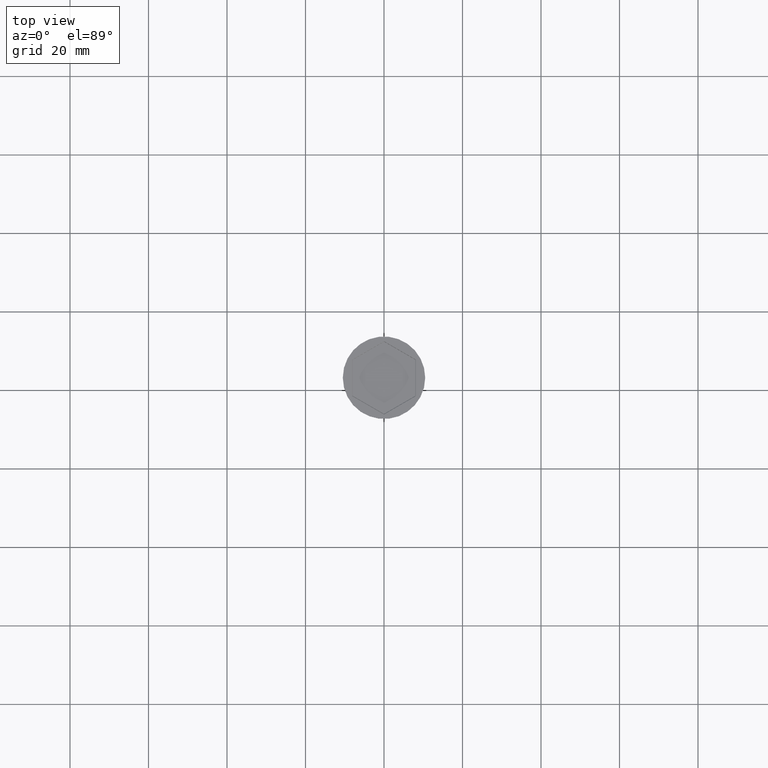
[diagram: clean part render]
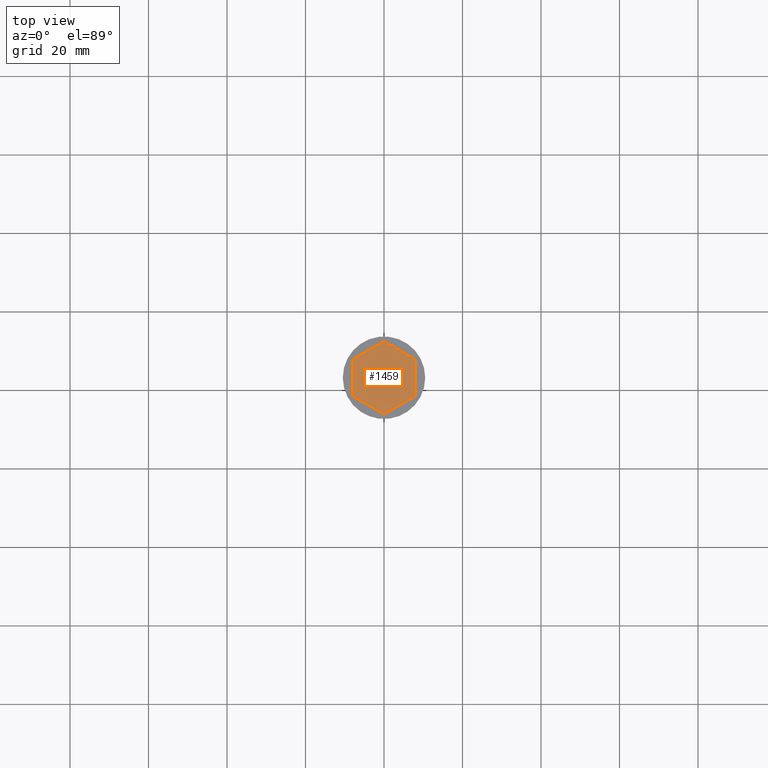
[diagram: same view with one face highlighted and labeled with its STEP entity id]
A machine part, top view. The second image highlights one B-rep face of the part: STEP entity #1459.
In plain terms, the highlighted planar face has unit normal (-0, 0, 1).
Its self-contained STEP definition (entity closure, byte-faithful):
#37 = EDGE_CURVE ( 'NONE', #983, #676, #1414, .T. ) ;
#116 = ORIENTED_EDGE ( 'NONE', *, *, #679, .T. ) ;
#178 = DIRECTION ( 'NONE',  ( 0.8660254037844387076, 0.4999999999999999445, 0.000000000000000000 ) ) ;
#201 = VECTOR ( 'NONE', #1328, 1000.000000000000000 ) ;
#224 = VECTOR ( 'NONE', #412, 1000.000000000000000 ) ;
#227 = CARTESIAN_POINT ( 'NONE',  ( -8.000000000000000000, -4.618802153517008513, -2.000000000000000000 ) ) ;
#243 = CARTESIAN_POINT ( 'NONE',  ( 8.000000000000000000, 4.618802153517003184, -2.000000000000000000 ) ) ;
#250 = FACE_OUTER_BOUND ( 'NONE', #289, .T. ) ;
#289 = EDGE_LOOP ( 'NONE', ( #748, #116, #1239, #1506, #1329, #1466 ) ) ;
#301 = LINE ( 'NONE', #1073, #1323 ) ;
#314 = LINE ( 'NONE', #338, #201 ) ;
#338 = CARTESIAN_POINT ( 'NONE',  ( -8.000000000000000000, 0.000000000000000000, -2.000000000000000000 ) ) ;
#412 = DIRECTION ( 'NONE',  ( 0.000000000000000000, 1.000000000000000000, -0.000000000000000000 ) ) ;
#463 = DIRECTION ( 'NONE',  ( 1.000000000000000000, 0.000000000000000000, 0.000000000000000000 ) ) ;
#496 = CARTESIAN_POINT ( 'NONE',  ( -8.000000000000000000, 4.618802153517002296, -2.000000000000000000 ) ) ;
#635 = LINE ( 'NONE', #774, #224 ) ;
#652 = EDGE_CURVE ( 'NONE', #676, #999, #635, .T. ) ;
#654 = CARTESIAN_POINT ( 'NONE',  ( 8.000000000000000000, -4.618802153517008513, -2.000000000000000000 ) ) ;
#676 = VERTEX_POINT ( 'NONE', #654 ) ;
#679 = EDGE_CURVE ( 'NONE', #1475, #997, #1156, .T. ) ;
#748 = ORIENTED_EDGE ( 'NONE', *, *, #1602, .T. ) ;
#774 = CARTESIAN_POINT ( 'NONE',  ( 8.000000000000000000, 0.000000000000000000, -2.000000000000000000 ) ) ;
#784 = DIRECTION ( 'NONE',  ( -0.8660254037844387076, 0.5000000000000001110, 0.000000000000000000 ) ) ;
#795 = DIRECTION ( 'NONE',  ( 0.8660254037844387076, -0.4999999999999999445, 0.000000000000000000 ) ) ;
#842 = CARTESIAN_POINT ( 'NONE',  ( 0.000000000000000000, -9.237604307034013473, -2.000000000000000000 ) ) ;
#972 = VECTOR ( 'NONE', #178, 999.9999999999998863 ) ;
#983 = VERTEX_POINT ( 'NONE', #842 ) ;
#997 = VERTEX_POINT ( 'NONE', #496 ) ;
#999 = VERTEX_POINT ( 'NONE', #243 ) ;
#1005 = AXIS2_PLACEMENT_3D ( 'NONE', #1245, #1578, #463 ) ;
#1011 = DIRECTION ( 'NONE',  ( -0.8660254037844387076, -0.5000000000000001110, 0.000000000000000000 ) ) ;
#1029 = LINE ( 'NONE', #1406, #1399 ) ;
#1073 = CARTESIAN_POINT ( 'NONE',  ( -4.000000000000000000, -6.928203230275510549, -2.000000000000000000 ) ) ;
#1079 = PLANE ( 'NONE',  #1005 ) ;
#1152 = CARTESIAN_POINT ( 'NONE',  ( 0.000000000000000000, 9.237604307034009921, -2.000000000000000000 ) ) ;
#1156 = LINE ( 'NONE', #1275, #1597 ) ;
#1177 = EDGE_CURVE ( 'NONE', #997, #1345, #314, .T. ) ;
#1239 = ORIENTED_EDGE ( 'NONE', *, *, #1177, .T. ) ;
#1245 = CARTESIAN_POINT ( 'NONE',  ( 0.000000000000000000, 0.000000000000000000, -2.000000000000000000 ) ) ;
#1262 = EDGE_CURVE ( 'NONE', #1345, #983, #301, .T. ) ;
#1275 = CARTESIAN_POINT ( 'NONE',  ( -3.999999999999998224, 6.928203230275506108, -2.000000000000000000 ) ) ;
#1297 = CARTESIAN_POINT ( 'NONE',  ( 4.000000000000000000, -6.928203230275510549, -2.000000000000000000 ) ) ;
#1323 = VECTOR ( 'NONE', #795, 999.9999999999998863 ) ;
#1328 = DIRECTION ( 'NONE',  ( 0.000000000000000000, -1.000000000000000000, 0.000000000000000000 ) ) ;
#1329 = ORIENTED_EDGE ( 'NONE', *, *, #37, .T. ) ;
#1345 = VERTEX_POINT ( 'NONE', #227 ) ;
#1399 = VECTOR ( 'NONE', #784, 999.9999999999998863 ) ;
#1406 = CARTESIAN_POINT ( 'NONE',  ( 3.999999999999998224, 6.928203230275506108, -2.000000000000000000 ) ) ;
#1414 = LINE ( 'NONE', #1297, #972 ) ;
#1459 = ADVANCED_FACE ( 'NONE', ( #250 ), #1079, .T. ) ;
#1466 = ORIENTED_EDGE ( 'NONE', *, *, #652, .T. ) ;
#1475 = VERTEX_POINT ( 'NONE', #1152 ) ;
#1506 = ORIENTED_EDGE ( 'NONE', *, *, #1262, .T. ) ;
#1578 = DIRECTION ( 'NONE',  ( -0.000000000000000000, 0.000000000000000000, 1.000000000000000000 ) ) ;
#1597 = VECTOR ( 'NONE', #1011, 999.9999999999998863 ) ;
#1602 = EDGE_CURVE ( 'NONE', #999, #1475, #1029, .T. ) ;